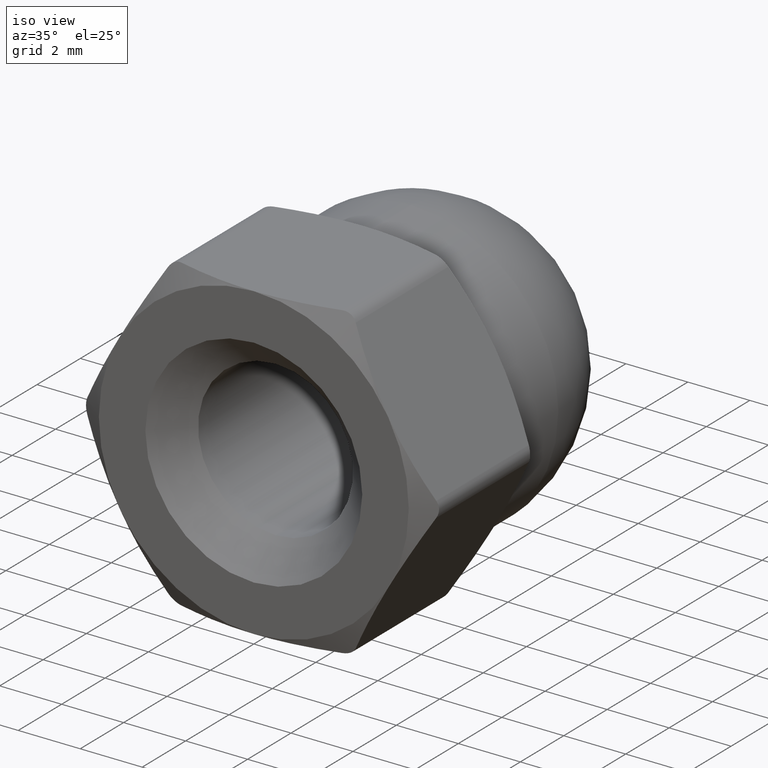
[diagram: clean part render]
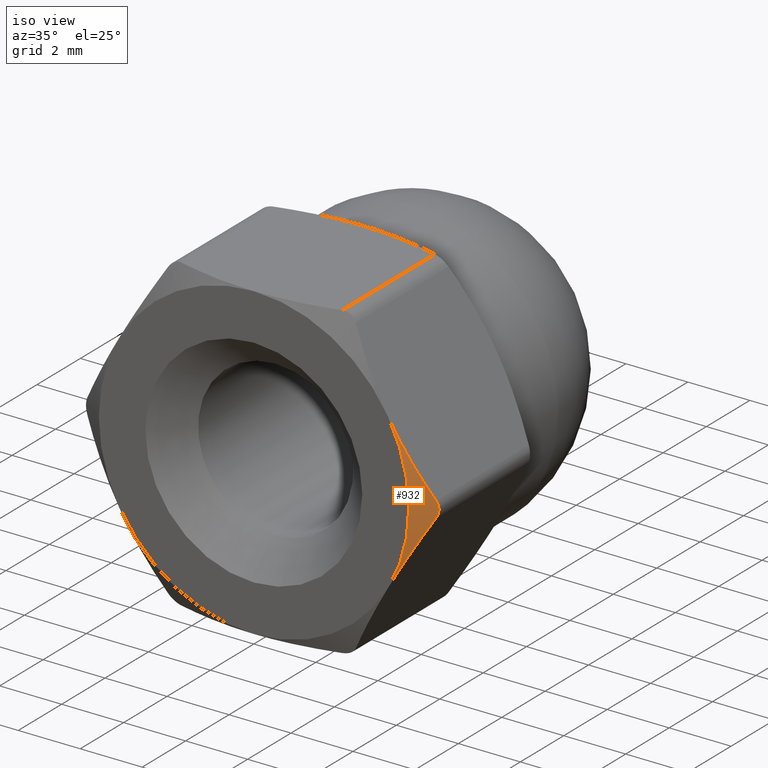
[diagram: same view with one face highlighted and labeled with its STEP entity id]
A machine part, iso view. The second image highlights one B-rep face of the part: STEP entity #932.
In plain terms, the highlighted conical surface has half-angle 60 deg.
Its self-contained STEP definition (entity closure, byte-faithful):
#1 = CARTESIAN_POINT ( 'NONE',  ( 5.629165124598850800, 0.3664522033757208200, -0.2500000000000014400 ) ) ;
#18 = DIRECTION ( 'NONE',  ( -0.0000000000000000000, 1.000000000000000000, -0.0000000000000000000 ) ) ;
#58 = EDGE_LOOP ( 'NONE', ( #762, #856, #743, #346 ) ) ;
#105 = CARTESIAN_POINT ( 'NONE',  ( 5.696075590800707500, 0.4018833234856946700, -0.08841851701786113100 ) ) ;
#166 = EDGE_CURVE ( 'NONE', #700, #1023, #559, .T. ) ;
#191 = CARTESIAN_POINT ( 'NONE',  ( 5.629165124598913800, 0.3664522033757531300, 0.2499999999998900000 ) ) ;
#215 = CARTESIAN_POINT ( 'NONE',  ( 4.330127018922192800, 0.0000000000000000000, -2.500000000000002700 ) ) ;
#276 = CARTESIAN_POINT ( 'NONE',  ( 4.330127018922195400, 0.0000000000000000000, 2.499999999999999600 ) ) ;
#288 = CARTESIAN_POINT ( 'NONE',  ( 4.770156486568005500, 0.03439641625940995800, -1.737846605209966800 ) ) ;
#300 = B_SPLINE_CURVE_WITH_KNOTS ( 'NONE', 3,
 ( #1, #1081, #105, #677, #382, #191 ),
 .UNSPECIFIED., .F., .F.,
 ( 4, 2, 4 ),
 ( 5.421010862427522200E-020, 0.0002635016616916907200, 0.0005270033233833813300 ),
 .UNSPECIFIED. ) ;
#319 = DIRECTION ( 'NONE',  ( 0.0000000000000000000, 1.000000000000000000, 0.0000000000000000000 ) ) ;
#346 = ORIENTED_EDGE ( 'NONE', *, *, #920, .T. ) ;
#365 = CARTESIAN_POINT ( 'NONE',  ( 4.330127018922195400, 0.0000000000000000000, 2.499999999999999600 ) ) ;
#368 = CONICAL_SURFACE ( 'NONE', #1238, 5.773502691896257300, 1.047197551196603600 ) ;
#382 = CARTESIAN_POINT ( 'NONE',  ( 5.672189980988156900, 0.3893592352059678800, 0.1754787627453088800 ) ) ;
#406 = EDGE_CURVE ( 'NONE', #757, #700, #300, .T. ) ;
#434 = AXIS2_PLACEMENT_3D ( 'NONE', #1128, #319, #1049 ) ;
#460 = CARTESIAN_POINT ( 'NONE',  ( 5.629165124598913800, 0.3664522033757531300, 0.2499999999998900000 ) ) ;
#472 = CARTESIAN_POINT ( 'NONE',  ( 5.416897631432968700, 0.2534380382968110500, -0.6176580829585877100 ) ) ;
#559 = B_SPLINE_CURVE_WITH_KNOTS ( 'NONE', 3,
 ( #865, #963, #1065, #365 ),
 .UNSPECIFIED., .F., .F.,
 ( 4, 4 ),
 ( 0.0002973740778412419600, 0.002921158011986712500 ),
 .UNSPECIFIED. ) ;
#599 = DIRECTION ( 'NONE',  ( 0.0000000000000000000, 0.0000000000000000000, -1.000000000000000000 ) ) ;
#677 = CARTESIAN_POINT ( 'NONE',  ( 5.696228875202796100, 0.4019640539834253800, 0.08754741462605558600 ) ) ;
#700 = VERTEX_POINT ( 'NONE', #460 ) ;
#743 = ORIENTED_EDGE ( 'NONE', *, *, #166, .T. ) ;
#757 = VERTEX_POINT ( 'NONE', #1180 ) ;
#762 = ORIENTED_EDGE ( 'NONE', *, *, #957, .T. ) ;
#856 = ORIENTED_EDGE ( 'NONE', *, *, #406, .T. ) ;
#865 = CARTESIAN_POINT ( 'NONE',  ( 5.629165124598913800, 0.3664522033757531300, 0.2499999999998900000 ) ) ;
#878 = CARTESIAN_POINT ( 'NONE',  ( 5.629165124598850800, 0.3664522033757208200, -0.2500000000000014400 ) ) ;
#887 = CARTESIAN_POINT ( 'NONE',  ( 5.202901597395190000, 0.1612945239866042100, -0.9883100865302583100 ) ) ;
#897 = CIRCLE ( 'NONE', #434, 5.000000000000000900 ) ;
#920 = EDGE_CURVE ( 'NONE', #1023, #928, #897, .T. ) ;
#928 = VERTEX_POINT ( 'NONE', #215 ) ;
#932 = ADVANCED_FACE ( 'NONE', ( #1166 ), #368, .T. ) ;
#957 = EDGE_CURVE ( 'NONE', #928, #757, #1039, .T. ) ;
#963 = CARTESIAN_POINT ( 'NONE',  ( 5.203651303689414800, 0.1399027280774077000, 0.9870115571379066700 ) ) ;
#1023 = VERTEX_POINT ( 'NONE', #276 ) ;
#1039 = B_SPLINE_CURVE_WITH_KNOTS ( 'NONE', 3,
 ( #1239, #1181, #288, #887, #472, #878 ),
 .UNSPECIFIED., .F., .F.,
 ( 4, 2, 4 ),
 ( 0.002921158011986710300, 0.004227809343379588600, 0.005534460674772466800 ),
 .UNSPECIFIED. ) ;
#1049 = DIRECTION ( 'NONE',  ( 0.0000000000000000000, 0.0000000000000000000, 1.000000000000000000 ) ) ;
#1065 = CARTESIAN_POINT ( 'NONE',  ( 4.771913713798364900, -4.213856424156882900E-015, 1.734802998366539600 ) ) ;
#1081 = CARTESIAN_POINT ( 'NONE',  ( 5.672176000091992500, 0.3893517915824370500, -0.1755029783678582800 ) ) ;
#1128 = CARTESIAN_POINT ( 'NONE',  ( 0.0000000000000000000, 0.0000000000000000000, 0.0000000000000000000 ) ) ;
#1166 = FACE_OUTER_BOUND ( 'NONE', #58, .T. ) ;
#1180 = CARTESIAN_POINT ( 'NONE',  ( 5.629165124598850800, 0.3664522033757208200, -0.2500000000000014400 ) ) ;
#1181 = CARTESIAN_POINT ( 'NONE',  ( 4.550137960196445300, -4.147073309757052900E-015, -2.118929871491941800 ) ) ;
#1189 = CARTESIAN_POINT ( 'NONE',  ( 0.0000000000000000000, 0.4465819873851976100, 0.0000000000000000000 ) ) ;
#1238 = AXIS2_PLACEMENT_3D ( 'NONE', #1189, #18, #599 ) ;
#1239 = CARTESIAN_POINT ( 'NONE',  ( 4.330127018922192800, 0.0000000000000000000, -2.500000000000002700 ) ) ;